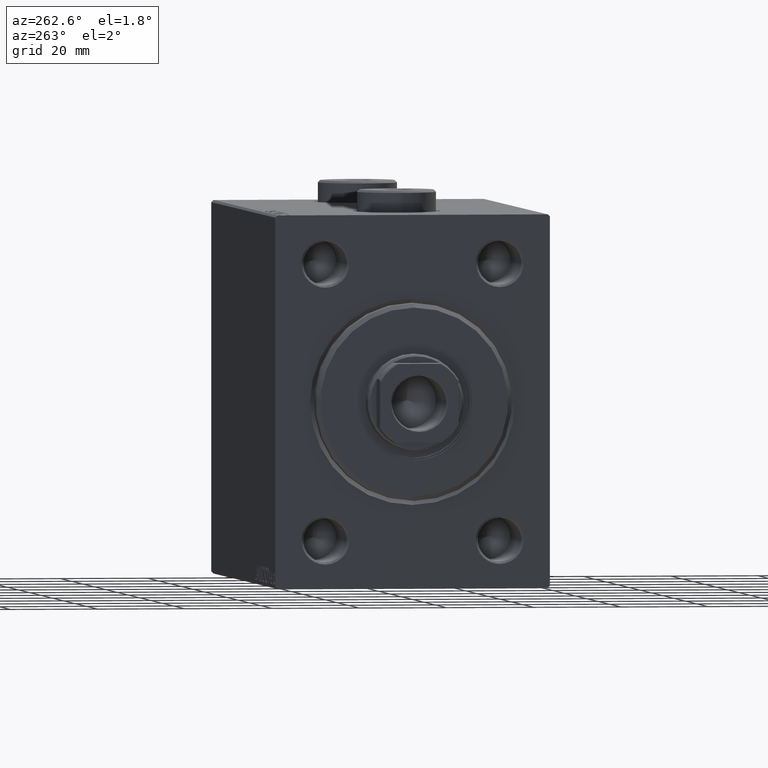
[diagram: clean part render]
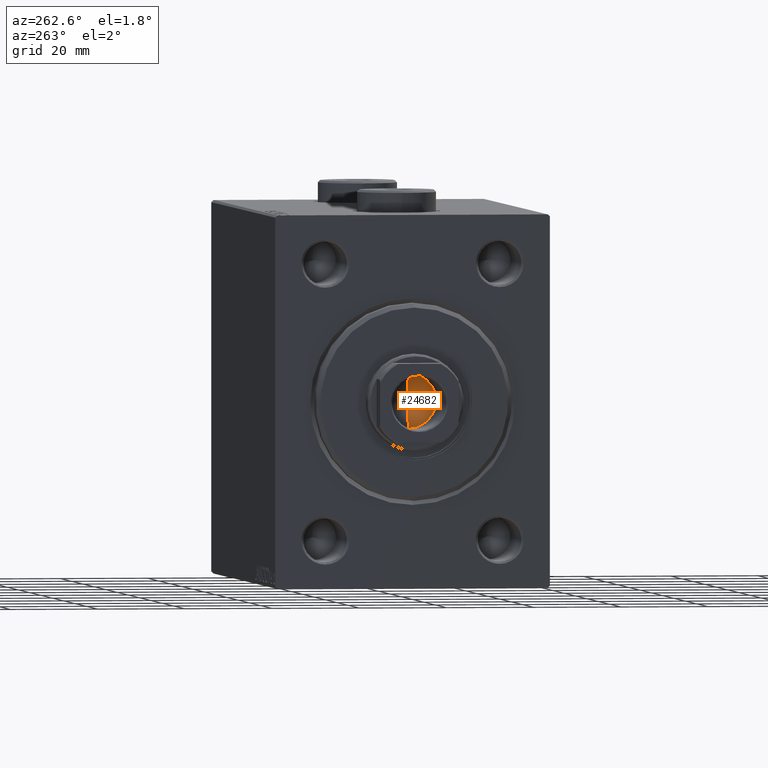
[diagram: same view with one face highlighted and labeled with its STEP entity id]
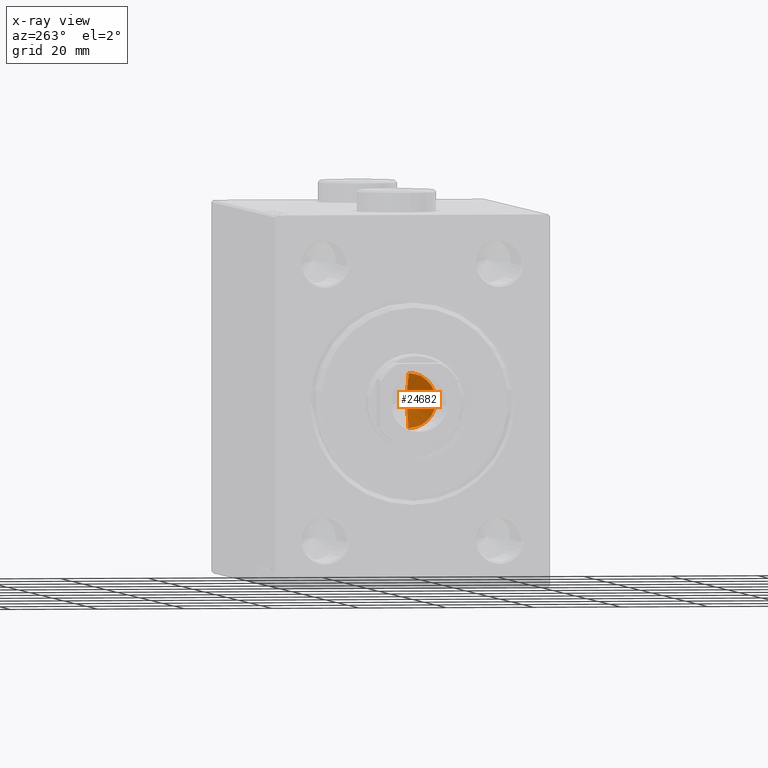
[diagram: x-ray of the same camera — body ghosted, the highlighted face saturated]
A machine part, auxiliary view. The second image highlights one B-rep face of the part: STEP entity #24682.
The next image is the same camera in x-ray: the body ghosted, the highlighted face saturated — about 0% of this face is hidden behind the body in this view.
In plain terms, the highlighted conical surface has half-angle 59 deg.
Its self-contained STEP definition (entity closure, byte-faithful):
#1566 = CARTESIAN_POINT ( 'NONE',  ( 6.249999999999995559, 0.000000000000000000, 94.00000000000001421 ) ) ;
#2658 = VERTEX_POINT ( 'NONE', #39413 ) ;
#3792 = LINE ( 'NONE', #14862, #35373 ) ;
#7200 = EDGE_LOOP ( 'NONE', ( #39255, #42876, #26937 ) ) ;
#9194 = CONICAL_SURFACE ( 'NONE', #23253, 6.249999999999995559, 1.029744258676653201 ) ;
#9538 = DIRECTION ( 'NONE',  ( 1.000000000000000000, 0.000000000000000000, 0.000000000000000000 ) ) ;
#11384 = DIRECTION ( 'NONE',  ( -0.8571673007021116675, 1.049727191138617833E-16, 0.5150380749100552658 ) ) ;
#12458 = CARTESIAN_POINT ( 'NONE',  ( 6.249999999999995559, 0.000000000000000000, 94.00000000000001421 ) ) ;
#13866 = FACE_OUTER_BOUND ( 'NONE', #7200, .T. ) ;
#14862 = CARTESIAN_POINT ( 'NONE',  ( -6.249999999999995559, 7.654042494670950704E-16, 94.00000000000001421 ) ) ;
#16585 = LINE ( 'NONE', #12458, #29534 ) ;
#16862 = DIRECTION ( 'NONE',  ( 1.000000000000000000, 0.000000000000000000, 0.000000000000000000 ) ) ;
#16930 = DIRECTION ( 'NONE',  ( -0.000000000000000000, -0.000000000000000000, 1.000000000000000000 ) ) ;
#19277 = VERTEX_POINT ( 'NONE', #43571 ) ;
#21307 = CIRCLE ( 'NONE', #39721, 6.249999999999995559 ) ;
#23253 = AXIS2_PLACEMENT_3D ( 'NONE', #24019, #31155, #16862 ) ;
#24019 = CARTESIAN_POINT ( 'NONE',  ( 0.000000000000000000, 0.000000000000000000, 94.00000000000001421 ) ) ;
#24682 = ADVANCED_FACE ( 'NONE', ( #13866 ), #9194, .F. ) ;
#26937 = ORIENTED_EDGE ( 'NONE', *, *, #38721, .T. ) ;
#27219 = DIRECTION ( 'NONE',  ( 0.8571673007021116675, 0.000000000000000000, 0.5150380749100552658 ) ) ;
#27332 = CARTESIAN_POINT ( 'NONE',  ( 0.000000000000000000, 0.000000000000000000, 94.00000000000001421 ) ) ;
#29534 = VECTOR ( 'NONE', #27219, 1000.000000000000000 ) ;
#31155 = DIRECTION ( 'NONE',  ( -0.000000000000000000, -0.000000000000000000, 1.000000000000000000 ) ) ;
#35373 = VECTOR ( 'NONE', #11384, 1000.000000000000000 ) ;
#38721 = EDGE_CURVE ( 'NONE', #19277, #42217, #21307, .T. ) ;
#39255 = ORIENTED_EDGE ( 'NONE', *, *, #42780, .F. ) ;
#39413 = CARTESIAN_POINT ( 'NONE',  ( -5.058292539270947311E-15, 0.000000000000000000, 90.24462113107774996 ) ) ;
#39721 = AXIS2_PLACEMENT_3D ( 'NONE', #27332, #16930, #9538 ) ;
#39793 = EDGE_CURVE ( 'NONE', #2658, #19277, #3792, .T. ) ;
#42217 = VERTEX_POINT ( 'NONE', #1566 ) ;
#42780 = EDGE_CURVE ( 'NONE', #2658, #42217, #16585, .T. ) ;
#42876 = ORIENTED_EDGE ( 'NONE', *, *, #39793, .T. ) ;
#43571 = CARTESIAN_POINT ( 'NONE',  ( -6.249999999999995559, 7.654042494670950704E-16, 94.00000000000001421 ) ) ;